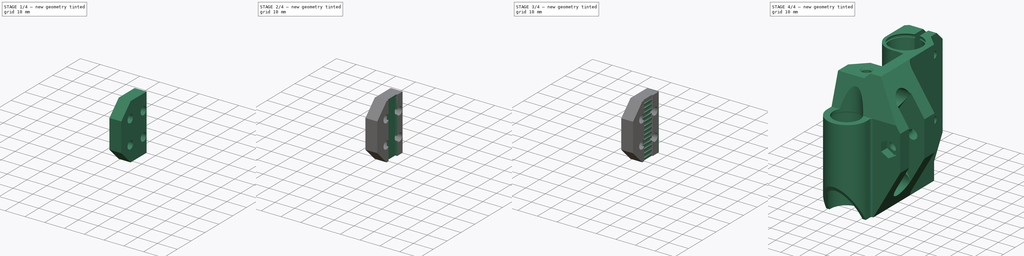
[diagram: build sequence overview — one tinted view per stage of 4, left to right]
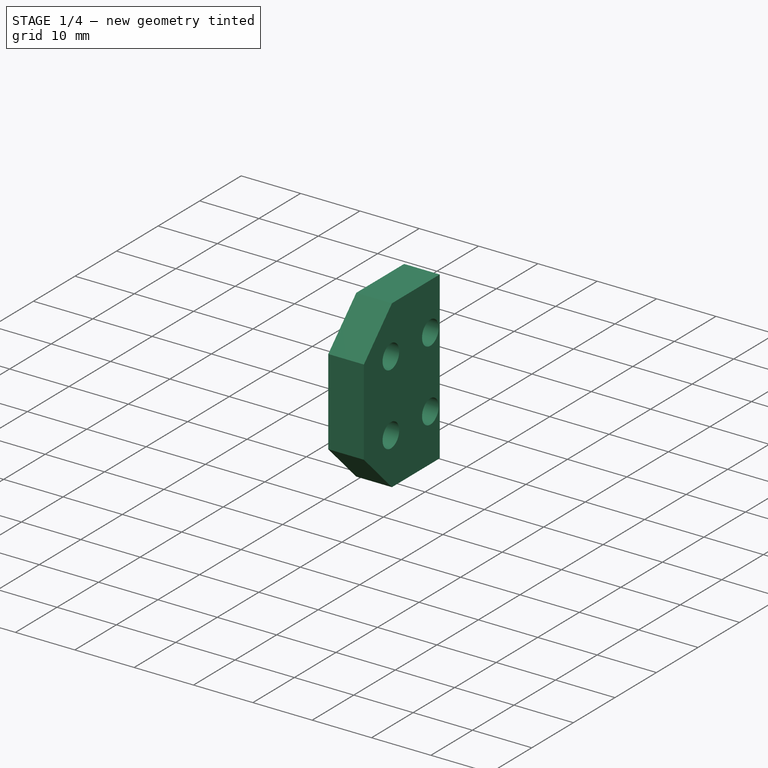
[diagram: stage 1 of 4 — iso view after this stage's code; geometry added in this stage tinted green]
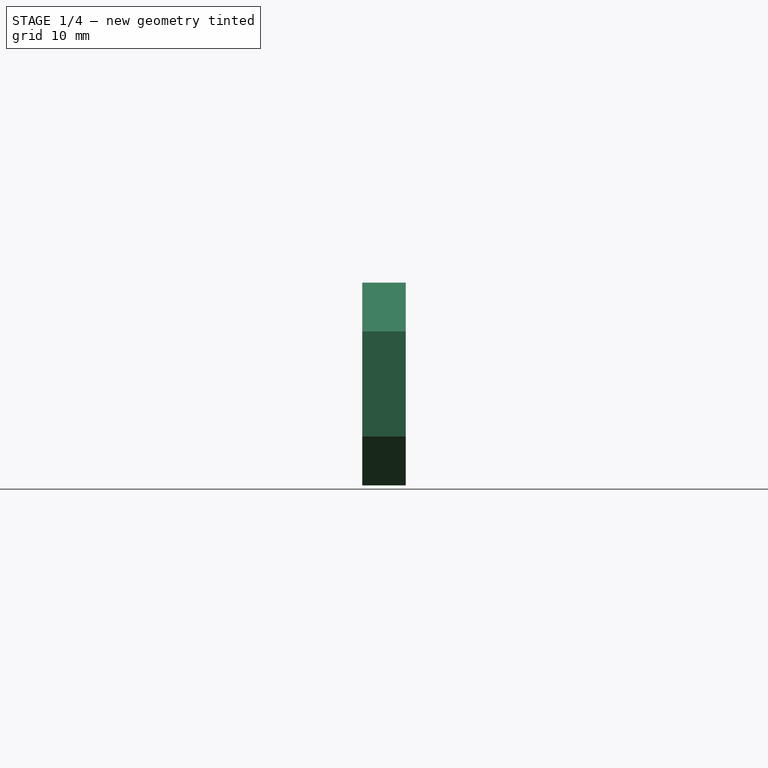
[diagram: stage 1 of 4 — front view after this stage's code; geometry added in this stage tinted green]
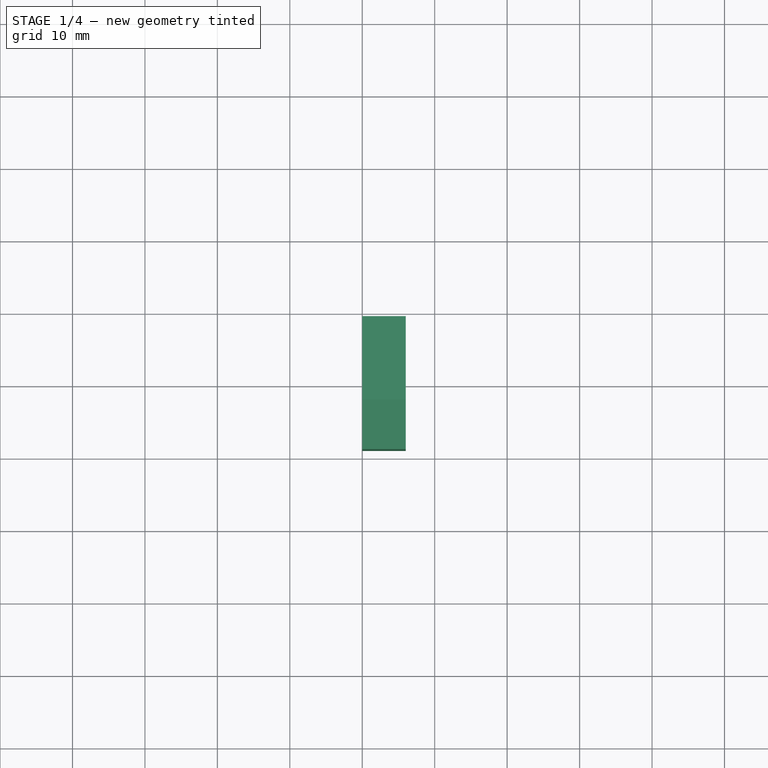
[diagram: stage 1 of 4 — top view after this stage's code; geometry added in this stage tinted green]
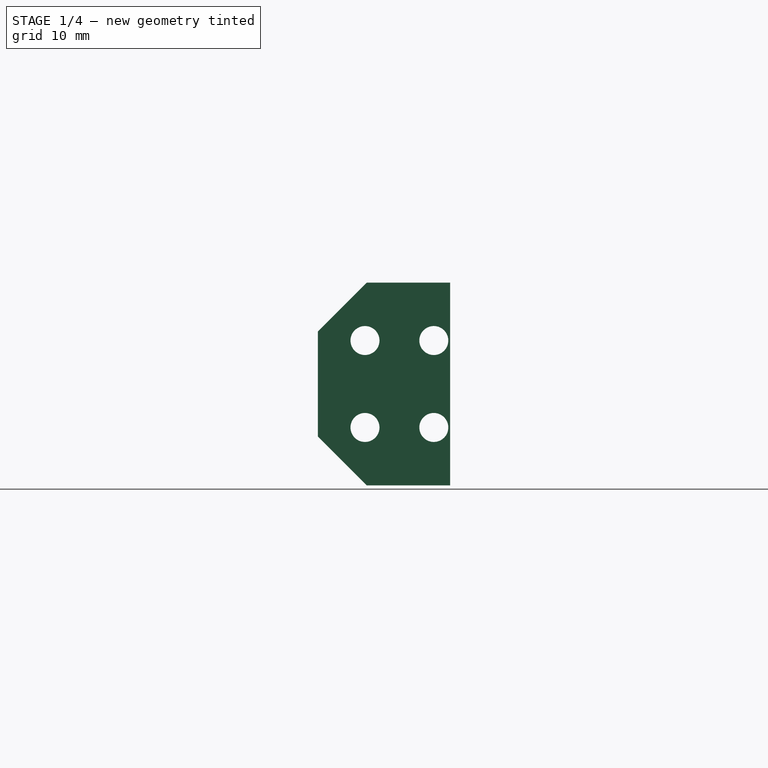
[diagram: stage 1 of 4 — right view after this stage's code; geometry added in this stage tinted green]
FCSTD DOCUMENT  (FreeCAD 0.17R11850 (Git))
Label: Z_belt_anchor_v1.1
License: CreativeCommons Attribution-ShareAlike
LicenseURL: http://creativecommons.org/licenses/by-sa/4.0/
objects: Sketcher::SketchObject×6, PartDesign::Pocket×4, PartDesign::Pad×3, Part::FeaturePython×1, PartDesign::LinearPattern×1, PartDesign::Body×1, Part::Feature×1
note: 24 computed .brp shape members not serialized (recipe doc carries the construction recipe); baked Part::Feature solids carry a one-line shape summary decoded from their .brp

FEATURE [Sketcher::SketchObject] Sketch
  MapMode = 5
  Placement = pos=(0,0,0) rot=(0.57735,0.57735,0.57735;2.0944rad)
  Support = -> [YZ_Plane]
  sketch-geometry (6):
    g0: LineSegment StartX=49.25 StartY=53.5 StartZ=0 EndX=37.75 EndY=53.5 EndZ=0
    g1: LineSegment StartX=37.75 StartY=53.5 StartZ=0 EndX=31 EndY=46.75 EndZ=0
    g2: LineSegment StartX=31 StartY=46.75 StartZ=0 EndX=31 EndY=32.25 EndZ=0
    g3: LineSegment StartX=31 StartY=32.25 StartZ=0 EndX=37.75 EndY=25.5 EndZ=0
    g4: LineSegment StartX=37.75 StartY=25.5 StartZ=0 EndX=49.25 EndY=25.5 EndZ=0
    g5: LineSegment StartX=49.25 StartY=25.5 StartZ=0 EndX=49.25 EndY=53.5 EndZ=0
  constraints (18):
    c: Coincident(g0,g1)
    c: Coincident(g1,g2)
    c: Coincident(g2,g3)
    c: Coincident(g3,g4)
    c: Coincident(g4,g5)
    c: Coincident(g5,g0)
    c: DistanceX(g4) = 49.25
    c: DistanceY(g4) = 25.5
    c: Vertical(g5)
    c: Vertical(g2)
    c: Horizontal(g0)
    c: Horizontal(g4)
    c: Angle(g3) = -0.785398
    c: Angle(g1) = -2.35619
    c: DistanceY(g3,g3) = 6.75
    c: DistanceY(g2,g2) = 14.5
    c: Equal(g1,g3)
    c: DistanceX(g0,g0) = 11.5
FEATURE [PartDesign::Pad] Pad
  Length = 6
  Length2 = 100
  Placement = pos=(0,0,0) rot=(0.57735,0.57735,0.57735;2.0944rad)
  Profile = -> Sketch
  Type = 0
FEATURE [Sketcher::SketchObject] Sketch001
  ExternalGeometry = -> [Pad]
  MapMode = 5
  Placement = pos=(0,0,0) rot=(0.57735,0.57735,-0.57735;4.18879rad)
  Support = -> [Pad]
  sketch-geometry (8):
    g0: Circle CenterX=37.5 CenterY=-33.5 CenterZ=0 NormalX=0 NormalY=0 NormalZ=1 Radius=2
    g1: Circle CenterX=47 CenterY=-33.5 CenterZ=0 NormalX=0 NormalY=0 NormalZ=1 Radius=2
    g2: Circle CenterX=47 CenterY=-45.5 CenterZ=0 NormalX=0 NormalY=0 NormalZ=1 Radius=2
    g3: Circle CenterX=37.5 CenterY=-45.5 CenterZ=0 NormalX=0 NormalY=0 NormalZ=1 Radius=2
    g4: LineSegment [constr] StartX=37.5 StartY=-33.5 StartZ=0 EndX=47 EndY=-33.5 EndZ=0
    g5: LineSegment [constr] StartX=47 StartY=-33.5 StartZ=0 EndX=47 EndY=-45.5 EndZ=0
    g6: LineSegment [constr] StartX=47 StartY=-45.5 StartZ=0 EndX=37.5 EndY=-45.5 EndZ=0
    g7: LineSegment [constr] StartX=37.5 StartY=-45.5 StartZ=0 EndX=37.5 EndY=-33.5 EndZ=0
  constraints (20):
    c: Coincident(g4,g5)
    c: Coincident(g5,g6)
    c: Coincident(g6,g7)
    c: Coincident(g7,g4)
    c: Horizontal(g4)
    c: Horizontal(g6)
    c: Vertical(g5)
    c: Vertical(g7)
    c: Coincident(g2,g5)
    c: Coincident(g3,g6)
    c: Coincident(g0,g4)
    c: Coincident(g1,g4)
    c: DistanceX(g0) = 37.5
    c: DistanceY(g0) = -33.5
    c: DistanceX(g4,g4) = 9.5
    c: DistanceY(g7,g7) = 12
    c: Radius(g3) = 2
    c: Equal(g3,g0)
    c: Equal(g3,g1)
    c: Equal(g3,g2)
FEATURE [PartDesign::Pocket] Pocket
  BaseFeature = -> Pad
  Length = 6
  Placement = pos=(0,0,0) rot=(0.57735,0.57735,0.57735;2.0944rad)
  Profile = -> Sketch001
  Type = 0
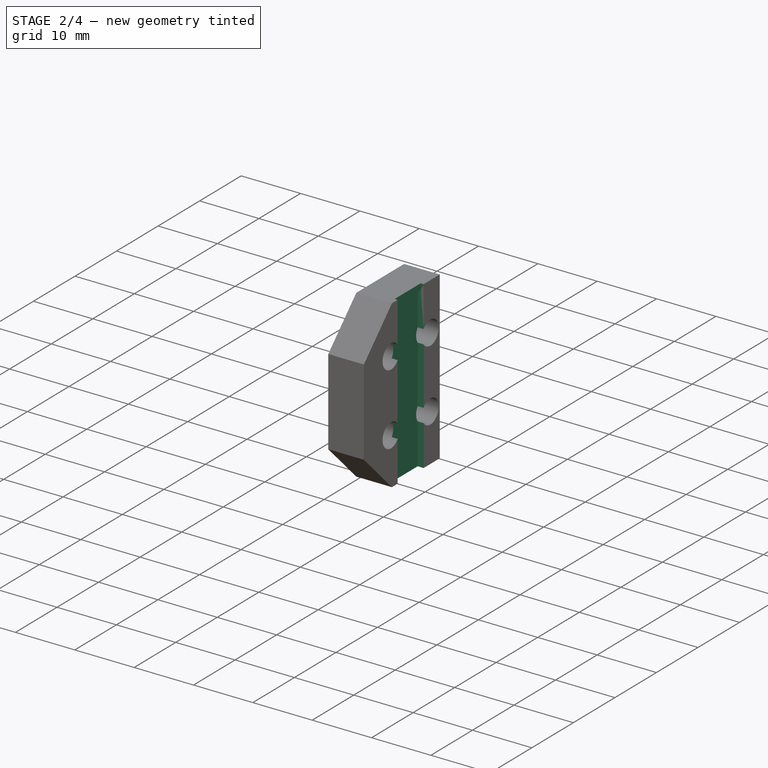
[diagram: stage 2 of 4 — iso view after this stage's code; geometry added in this stage tinted green]
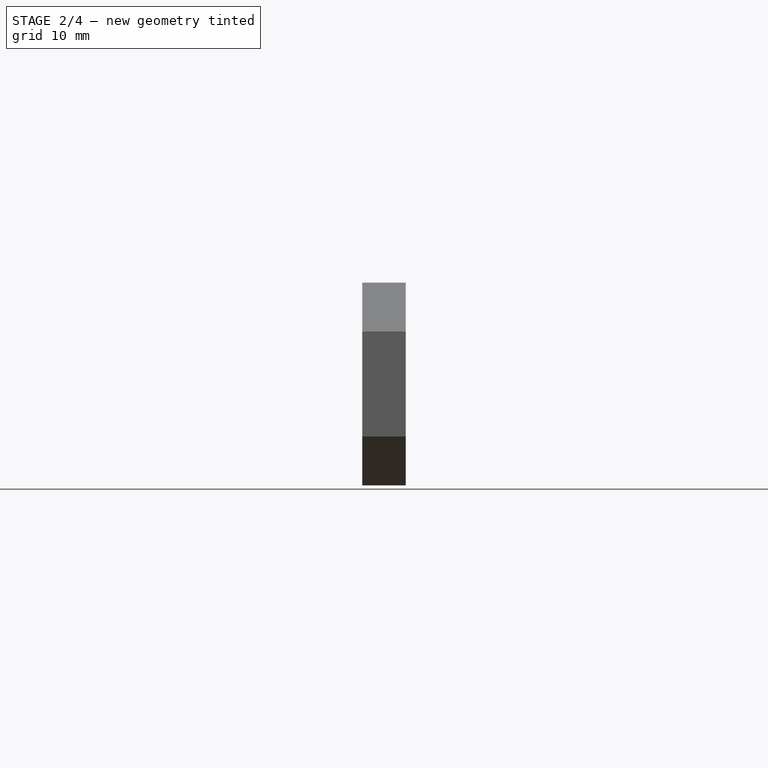
[diagram: stage 2 of 4 — front view after this stage's code; geometry added in this stage tinted green]
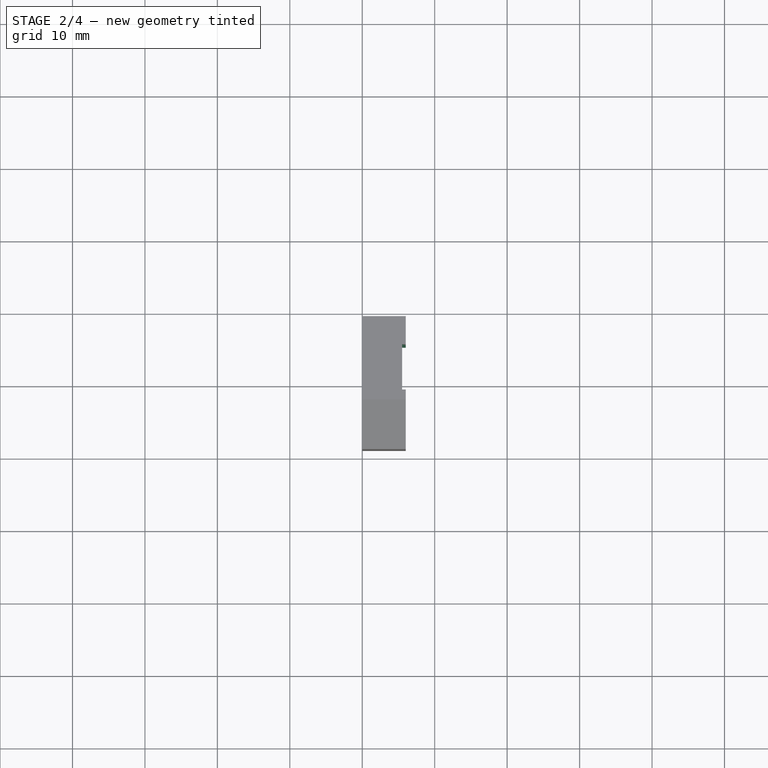
[diagram: stage 2 of 4 — top view after this stage's code; geometry added in this stage tinted green]
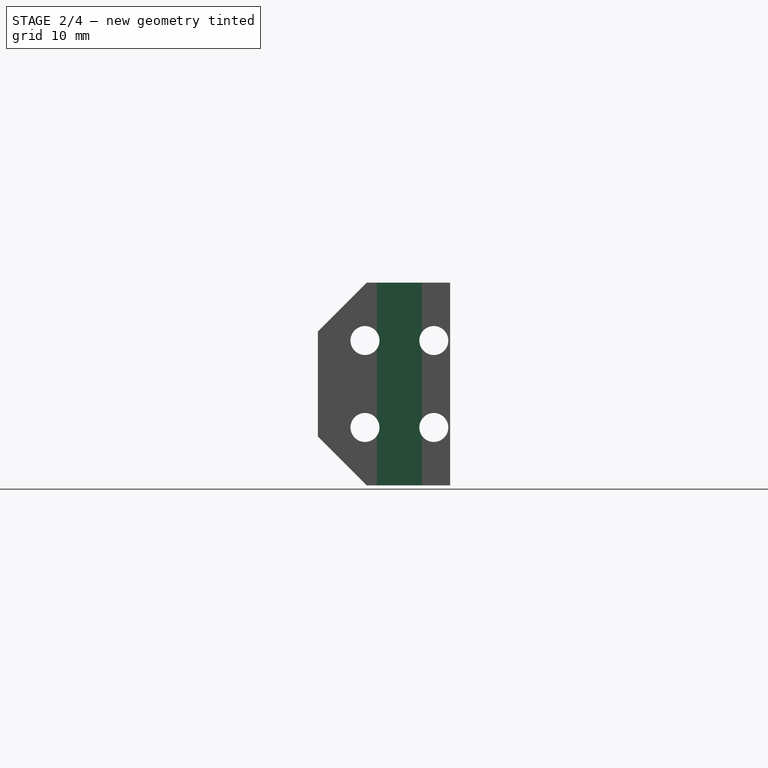
[diagram: stage 2 of 4 — right view after this stage's code; geometry added in this stage tinted green]
FEATURE [Sketcher::SketchObject] Sketch002
  ExternalGeometry = -> [Pocket]
  MapMode = 5
  Placement = pos=(6,-1e-12,1e-12) rot=(0.57735,0.57735,0.57735;2.0944rad)
  Support = -> [Pocket]
  sketch-geometry (4):
    g0: LineSegment StartX=39.125 StartY=53.5 StartZ=0 EndX=45.375 EndY=53.5 EndZ=0
    g1: LineSegment StartX=45.375 StartY=53.5 StartZ=0 EndX=45.375 EndY=25.5 EndZ=0
    g2: LineSegment StartX=45.375 StartY=25.5 StartZ=0 EndX=39.125 EndY=25.5 EndZ=0
    g3: LineSegment StartX=39.125 StartY=25.5 StartZ=0 EndX=39.125 EndY=53.5 EndZ=0
  constraints (12):
    c: Coincident(g0,g1)
    c: Coincident(g1,g2)
    c: Coincident(g2,g3)
    c: Coincident(g3,g0)
    c: Horizontal(g0)
    c: Horizontal(g2)
    c: Vertical(g1)
    c: Vertical(g3)
    c: PointOnObject(g1,g-4)
    c: PointOnObject(g0,g-3)
    c: DistanceX(g0,g0) = 6.25
    c: DistanceX(g0,g-3) = 3.875
FEATURE [PartDesign::Pocket] Pocket001
  BaseFeature = -> Pocket
  Length = 1
  Placement = pos=(0,0,0) rot=(0.57735,0.57735,0.57735;2.0944rad)
  Profile = -> Sketch002
  Type = 0
FEATURE [Sketcher::SketchObject] Sketch003
  ExternalGeometry = -> [Pocket001]
  MapMode = 5
  Placement = pos=(5,-1e-12,1e-12) rot=(0.57735,0.57735,0.57735;2.0944rad)
  Support = -> [Pocket001]
  sketch-geometry (4):
    g0: LineSegment StartX=39.125 StartY=53.5 StartZ=0 EndX=45.375 EndY=53.5 EndZ=0
    g1: LineSegment StartX=45.375 StartY=53.5 StartZ=0 EndX=45.375 EndY=52.5 EndZ=0
    g2: LineSegment StartX=45.375 StartY=52.5 StartZ=0 EndX=39.125 EndY=52.5 EndZ=0
    g3: LineSegment StartX=39.125 StartY=52.5 StartZ=0 EndX=39.125 EndY=53.5 EndZ=0
  constraints (12):
    c: Coincident(g0,g1)
    c: Coincident(g1,g2)
    c: Coincident(g2,g3)
    c: Coincident(g3,g0)
    c: Horizontal(g0)
    c: Horizontal(g2)
    c: Vertical(g1)
    c: Vertical(g3)
    c: DistanceY(g1,g1) = 1
    c: DistanceX(g0) = 39.125
    c: DistanceY(g0) = 53.5
    c: DistanceX(g0,g0) = 6.25
FEATURE [PartDesign::Pad] Pad001
  BaseFeature = -> Pocket001
  Length = 0.5
  Length2 = 100
  Placement = pos=(0,0,0) rot=(0.57735,0.57735,0.57735;2.0944rad)
  Profile = -> Sketch003
  Type = 0
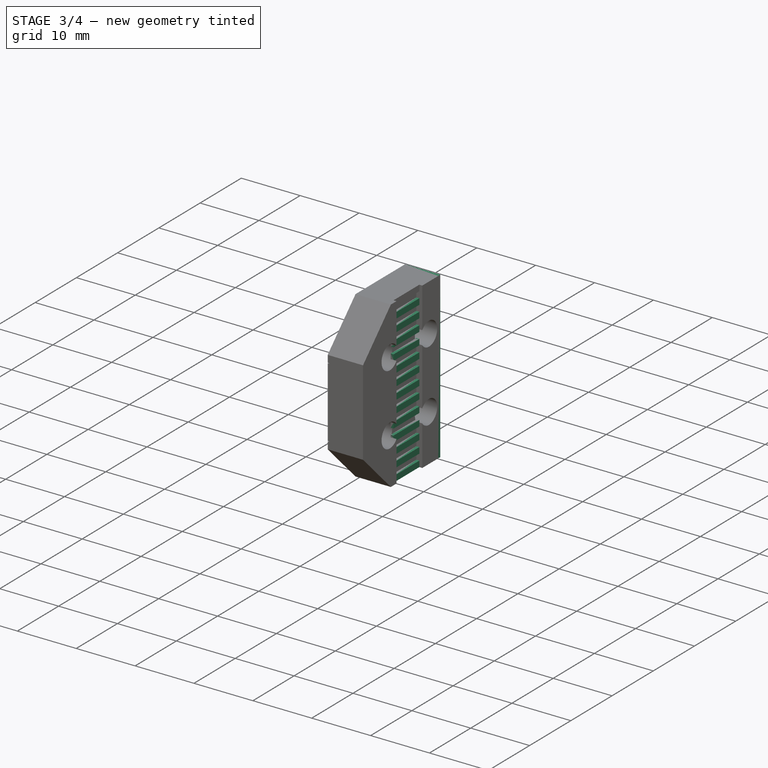
[diagram: stage 3 of 4 — iso view after this stage's code; geometry added in this stage tinted green]
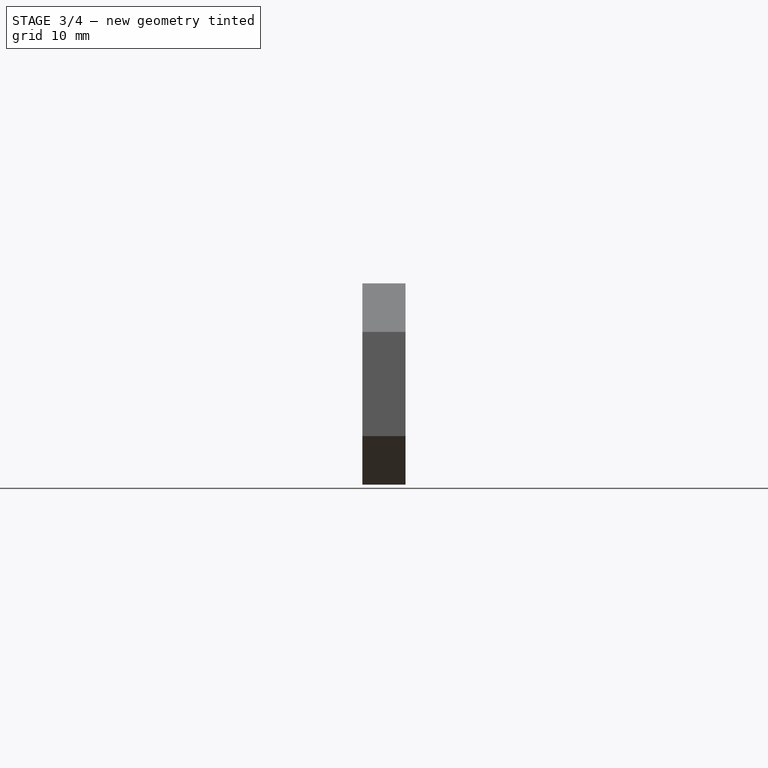
[diagram: stage 3 of 4 — front view after this stage's code; geometry added in this stage tinted green]
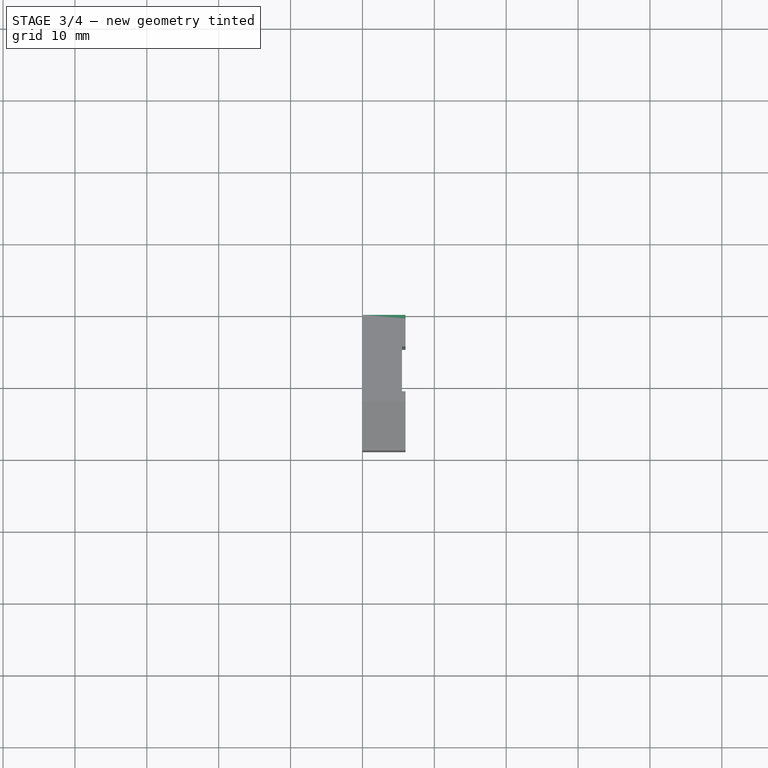
[diagram: stage 3 of 4 — top view after this stage's code; geometry added in this stage tinted green]
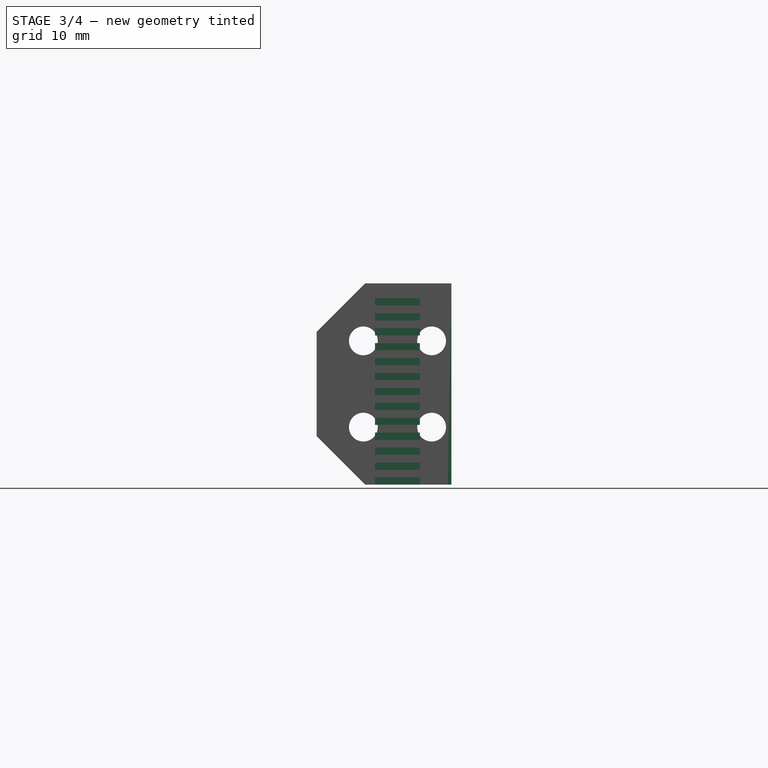
[diagram: stage 3 of 4 — right view after this stage's code; geometry added in this stage tinted green]
FEATURE [PartDesign::LinearPattern] LinearPattern
  BaseFeature = -> Pad001
  Direction = -> Z_Axis
  Length = 27
  Occurrences = 14
  Originals = -> [Pad001]
  Placement = pos=(0,0,0) rot=(0.57735,0.57735,0.57735;2.0944rad)
  Reversed = true
FEATURE [PartDesign::Pad] Pad002
  BaseFeature = -> LinearPattern
  Length = 0.5
  Length2 = 100
  Placement = pos=(0,0,0) rot=(0.57735,0.57735,0.57735;2.0944rad)
  Profile = -> LinearPattern [Face3]
  Type = 0
FEATURE [Sketcher::SketchObject] Sketch004
  ExternalGeometry = -> [Pad002]
  MapMode = 5
  Placement = pos=(0,0,0) rot=(0.57735,0.57735,-0.57735;4.18879rad)
  Support = -> [Pad002]
  sketch-geometry (10):
    g0: LineSegment [constr] StartX=31 StartY=-33.5 StartZ=0 EndX=47 EndY=-33.5 EndZ=0
    g1: LineSegment [constr] StartX=31 StartY=-45.5 StartZ=0 EndX=47 EndY=-45.5 EndZ=0
    g2: LineSegment StartX=31 StartY=-33.45 StartZ=0 EndX=45.0006 EndY=-33.45 EndZ=0
    g3: LineSegment StartX=45.0006 StartY=-33.45 StartZ=0 EndX=45.0006 EndY=-33.55 EndZ=0
    g4: LineSegment StartX=45.0006 StartY=-33.55 StartZ=0 EndX=31 EndY=-33.55 EndZ=0
    g5: LineSegment StartX=31 StartY=-33.55 StartZ=0 EndX=31 EndY=-33.45 EndZ=0
    g6: LineSegment StartX=31 StartY=-45.45 StartZ=0 EndX=45.0006 EndY=-45.45 EndZ=0
    g7: LineSegment StartX=45.0006 StartY=-45.45 StartZ=0 EndX=45.0006 EndY=-45.55 EndZ=0
    g8: LineSegment StartX=45.0006 StartY=-45.55 StartZ=0 EndX=31 EndY=-45.55 EndZ=0
    g9: LineSegment StartX=31 StartY=-45.55 StartZ=0 EndX=31 EndY=-45.45 EndZ=0
  constraints (30):
    c: PointOnObject(g0,g-7)
    c: Coincident(g0,g-4)
    c: Horizontal(g0)
    c: PointOnObject(g1,g-7)
    c: Coincident(g1,g-6)
    c: Horizontal(g1)
    c: Coincident(g2,g3)
    c: Coincident(g3,g4)
    c: Coincident(g4,g5)
    c: Coincident(g5,g2)
    c: Horizontal(g2)
    c: Horizontal(g4)
    c: Vertical(g3)
    c: Vertical(g5)
    c: PointOnObject(g2,g-7)
    c: PointOnObject(g3,g-4)
    c: Coincident(g6,g7)
    c: Coincident(g7,g8)
    c: Coincident(g8,g9)
    c: Coincident(g9,g6)
    c: Horizontal(g6)
    c: Horizontal(g8)
    c: Vertical(g7)
    c: Vertical(g9)
    c: PointOnObject(g6,g-7)
    c: PointOnObject(g7,g-6)
    c: Symmetric(g2,g4,g0)
    c: Distance(g3) = 0.1
    c: Symmetric(g8,g6,g1)
    c: Distance(g7) = 0.1
FEATURE [PartDesign::Pocket] Pocket002
  BaseFeature = -> Pad002
  Length = 0.25
  Placement = pos=(0,0,0) rot=(0.57735,0.57735,0.57735;2.0944rad)
  Profile = -> Sketch004
  Type = 0
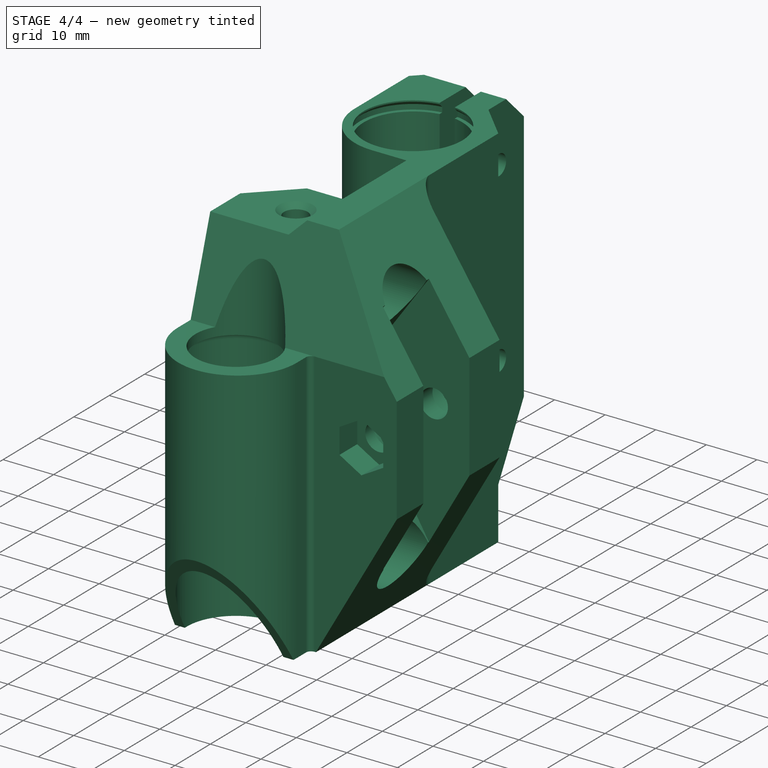
[diagram: stage 4 of 4 — iso view after this stage's code; geometry added in this stage tinted green]
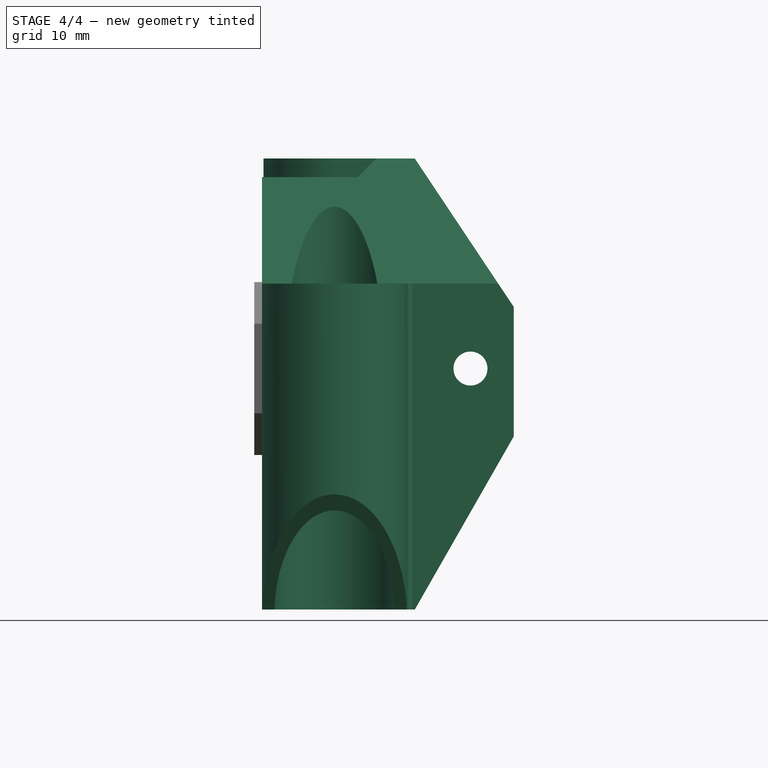
[diagram: stage 4 of 4 — front view after this stage's code; geometry added in this stage tinted green]
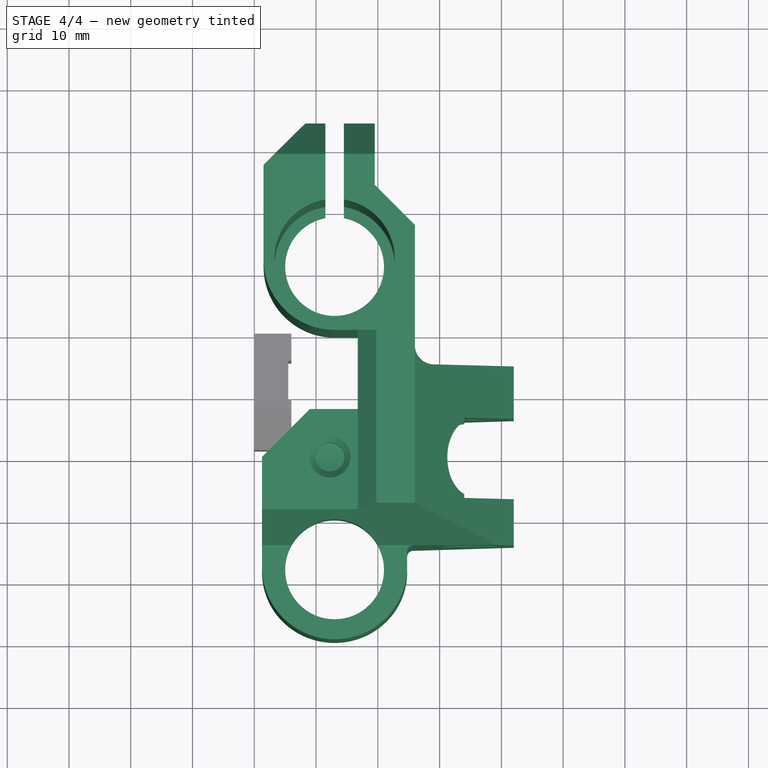
[diagram: stage 4 of 4 — top view after this stage's code; geometry added in this stage tinted green]
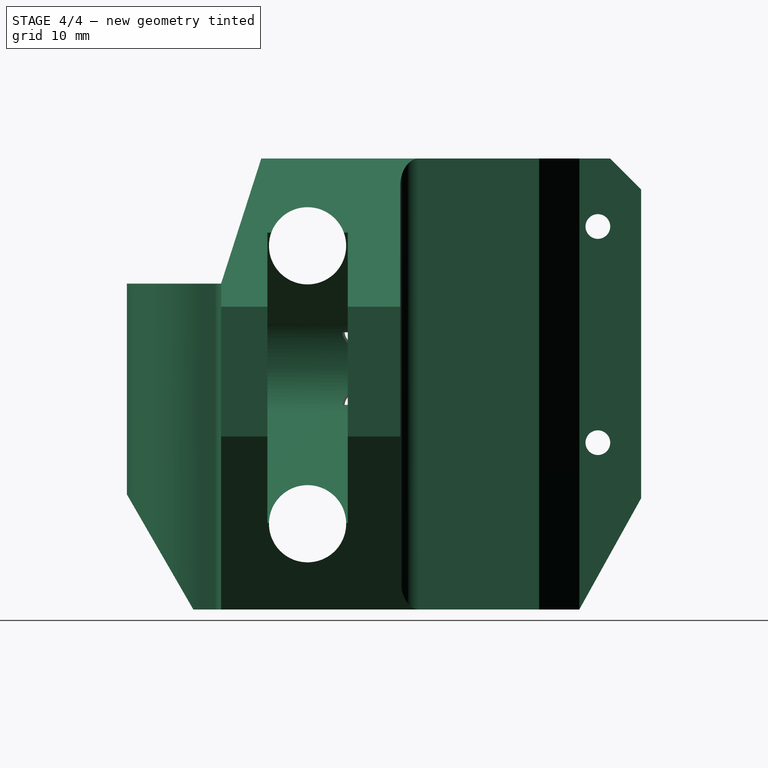
[diagram: stage 4 of 4 — right view after this stage's code; geometry added in this stage tinted green]
FEATURE [Part::FeaturePython] vr_x_idler_v3_1_01  # a2plus imported part (geometry in sourceFile) (typed FeaturePython)
  Placement = pos=(0,0,0.5) rot=(0,0,1;0rad)
  fixedPosition = true
  sourceFile = <userpath>/Projects/taz-quiver/Production_parts/Printed_parts/X/x_idler/vr_x_idler_v3.1.fcstd
  timeLastImport = 1.53419e+09
  updateColors = true
FEATURE [Sketcher::SketchObject] Sketch005
  ExternalGeometry = -> [Pocket002]
  MapMode = 5
  Placement = pos=(0,0,0) rot=(0.57735,0.57735,-0.57735;4.18879rad)
  Support = -> [Pocket002]
  sketch-geometry (4):
    g0: Circle CenterX=37.5 CenterY=-33.5 CenterZ=0 NormalX=0 NormalY=0 NormalZ=1 Radius=2
    g1: Circle CenterX=47 CenterY=-33.5 CenterZ=0 NormalX=0 NormalY=0 NormalZ=1 Radius=2
    g2: Circle CenterX=37.5 CenterY=-45.5 CenterZ=0 NormalX=0 NormalY=0 NormalZ=1 Radius=2
    g3: Circle CenterX=47 CenterY=-45.5 CenterZ=0 NormalX=0 NormalY=0 NormalZ=1 Radius=2
  constraints (8):
    c: Coincident(g0,g-3)
    c: Coincident(g1,g-6)
    c: Coincident(g2,g-4)
    c: Equal(g-6,g1)
    c: Equal(g1,g0)
    c: Equal(g0,g2)
    c: Equal(g2,g3)
    c: Coincident(g3,g-5)
FEATURE [PartDesign::Pocket] Pocket003
  BaseFeature = -> Pocket002
  Length = 5
  Placement = pos=(0,0,0) rot=(0.57735,0.57735,0.57735;2.0944rad)
  Profile = -> Sketch005
  Type = 1
FEATURE [PartDesign::Body] Body
  Group = -> [Sketch,Pad,Sketch001,Pocket,Sketch002,Pocket001,Sketch003,Pad001,LinearPattern,Pad002,Sketch004,Pocket002,Sketch005,Pocket003]
  Origin = -> Origin
  Tip = -> Pocket003
FEATURE [Part::Feature] Pocket003001  label="Pocket004"
  shape: bbox 6 x 18.75 x 28 mm, 84 faces (baked)
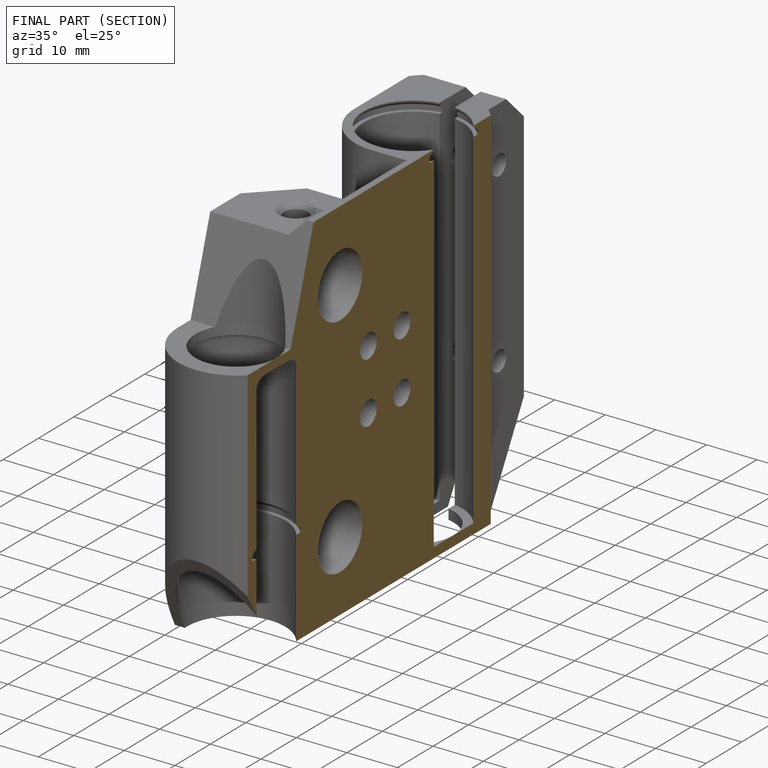
[diagram: finished part — half-section view (interior)]
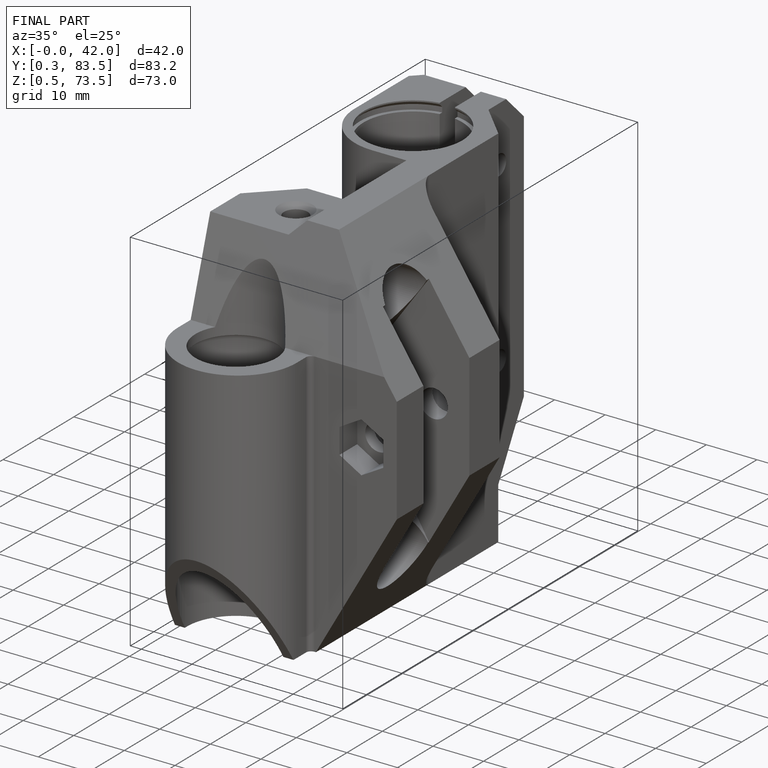
[diagram: finished part — iso view with bounding-box wireframe]
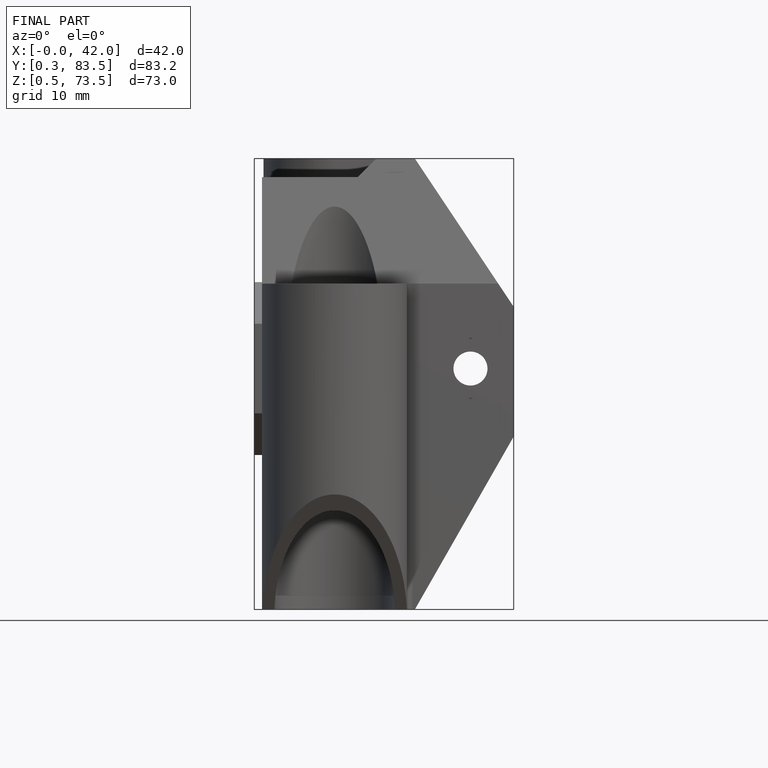
[diagram: finished part — front view with bounding-box wireframe]
